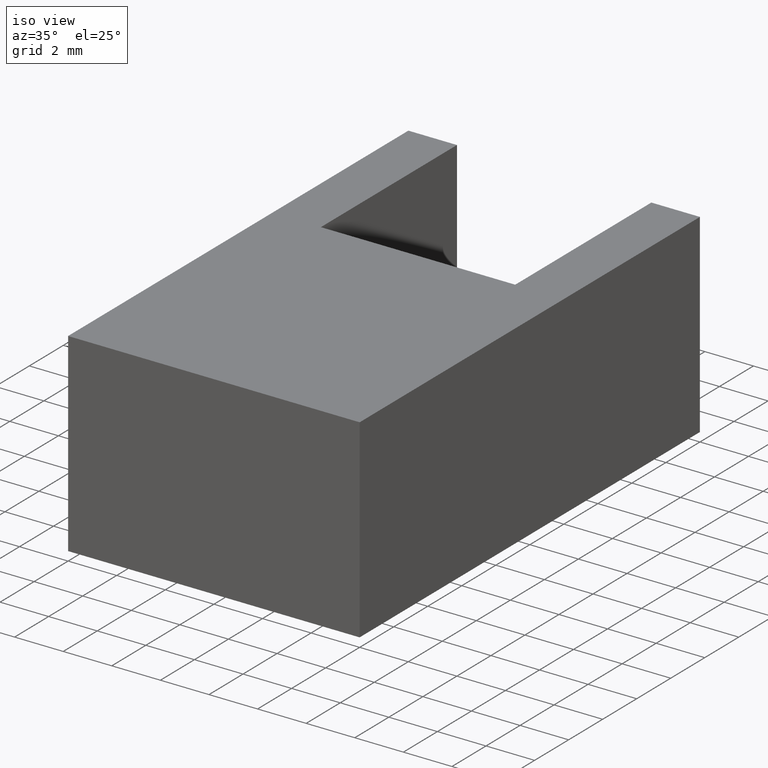
[diagram: clean part render]
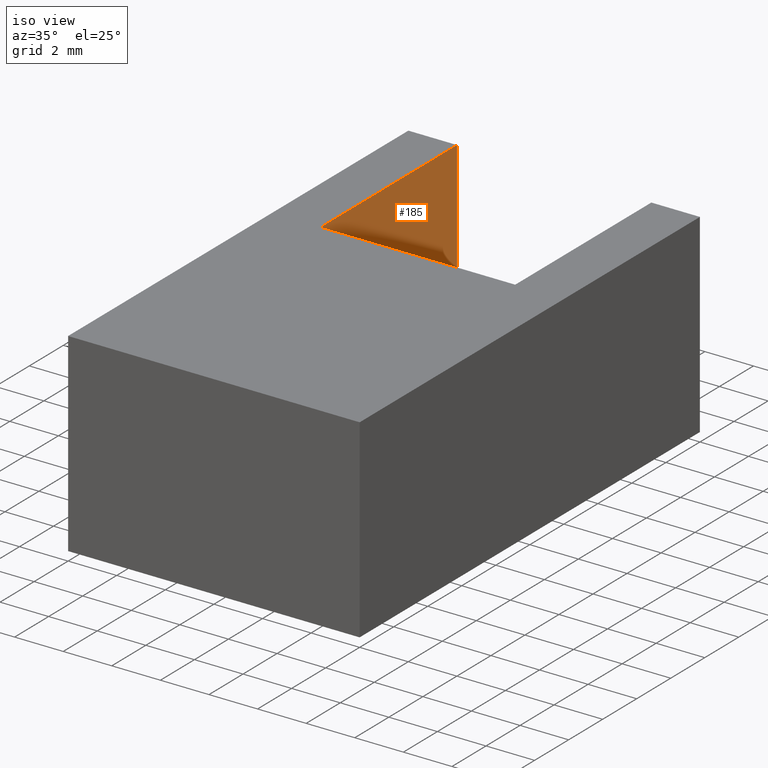
[diagram: same view with one face highlighted and labeled with its STEP entity id]
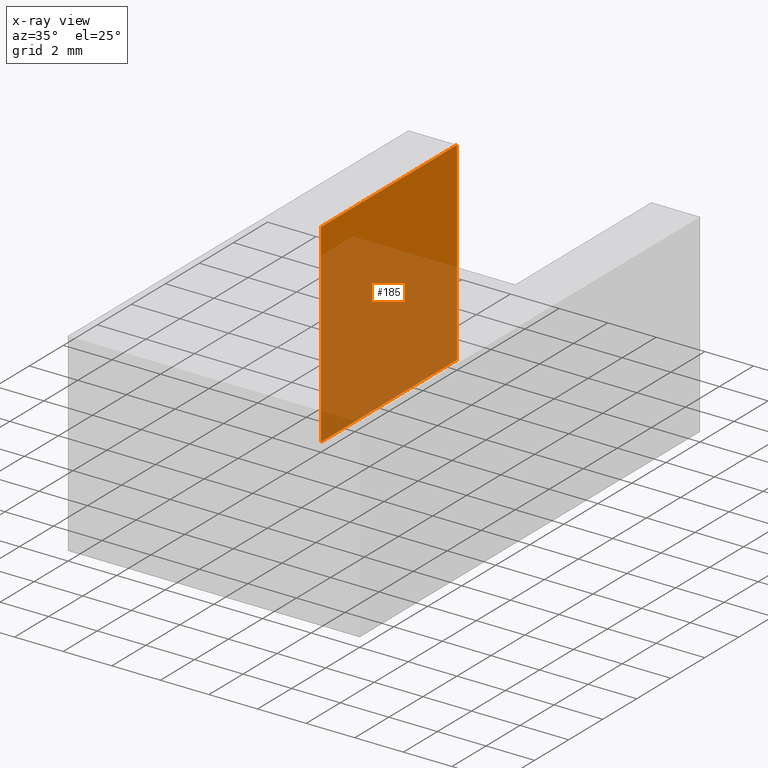
[diagram: x-ray of the same camera — body ghosted, the highlighted face saturated]
A machine part, iso view. The second image highlights one B-rep face of the part: STEP entity #185.
The next image is the same camera in x-ray: the body ghosted, the highlighted face saturated — about 70% of this face is hidden behind the body in this view.
In plain terms, the highlighted planar face has unit normal (1, 0, 0).
Its self-contained STEP definition (entity closure, byte-faithful):
#19=FACE_OUTER_BOUND('',#29,.T.);
#29=EDGE_LOOP('',(#140,#141,#142,#143));
#40=LINE('',#283,#64);
#48=LINE('',#298,#72);
#49=LINE('',#301,#73);
#50=LINE('',#302,#74);
#64=VECTOR('',#233,10.);
#72=VECTOR('',#245,10.);
#73=VECTOR('',#248,10.);
#74=VECTOR('',#249,10.);
#88=VERTEX_POINT('',#280);
#89=VERTEX_POINT('',#282);
#94=VERTEX_POINT('',#296);
#95=VERTEX_POINT('',#300);
#104=EDGE_CURVE('',#89,#88,#40,.T.);
#112=EDGE_CURVE('',#94,#88,#48,.T.);
#113=EDGE_CURVE('',#94,#95,#49,.T.);
#114=EDGE_CURVE('',#95,#89,#50,.T.);
#140=ORIENTED_EDGE('',*,*,#113,.T.);
#141=ORIENTED_EDGE('',*,*,#114,.T.);
#142=ORIENTED_EDGE('',*,*,#104,.T.);
#143=ORIENTED_EDGE('',*,*,#112,.F.);
#175=PLANE('',#218);
#185=ADVANCED_FACE('',(#19),#175,.T.);
#218=AXIS2_PLACEMENT_3D('',#299,#246,#247);
#233=DIRECTION('',(0.,1.,0.));
#245=DIRECTION('',(0.,0.,-1.));
#246=DIRECTION('center_axis',(1.,0.,0.));
#247=DIRECTION('ref_axis',(0.,0.,-1.));
#248=DIRECTION('',(0.,-1.,0.));
#249=DIRECTION('',(0.,0.,-1.));
#280=CARTESIAN_POINT('',(-4.,10.,-4.));
#282=CARTESIAN_POINT('',(-4.,2.,-4.));
#283=CARTESIAN_POINT('',(-4.,10.,-4.));
#296=CARTESIAN_POINT('',(-4.,10.,4.));
#298=CARTESIAN_POINT('',(-4.,10.,0.));
#299=CARTESIAN_POINT('Origin',(-4.,10.,0.));
#300=CARTESIAN_POINT('',(-4.,2.,4.));
#301=CARTESIAN_POINT('',(-4.,10.,4.));
#302=CARTESIAN_POINT('',(-4.,2.,0.));